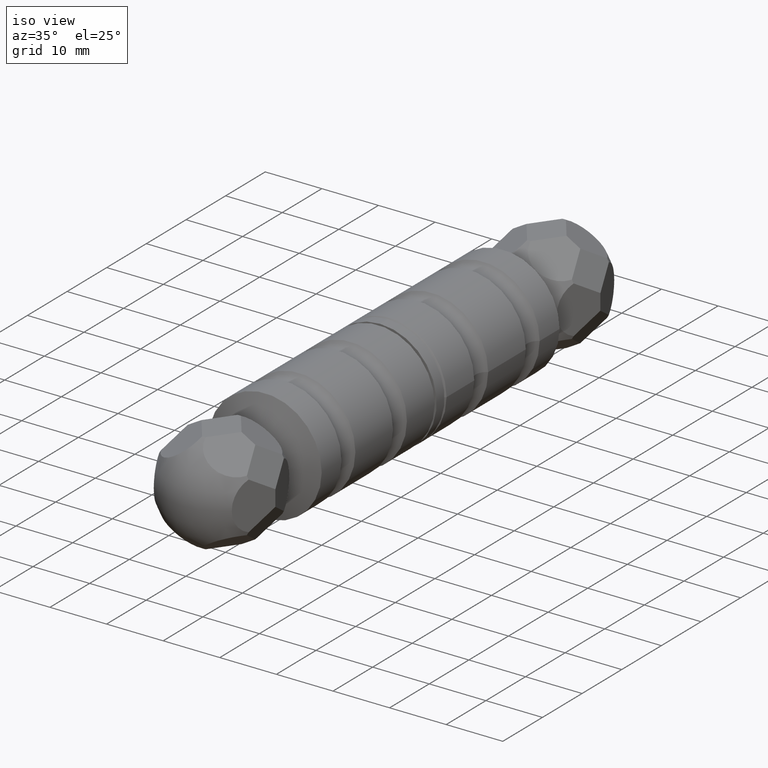
[diagram: clean part render]
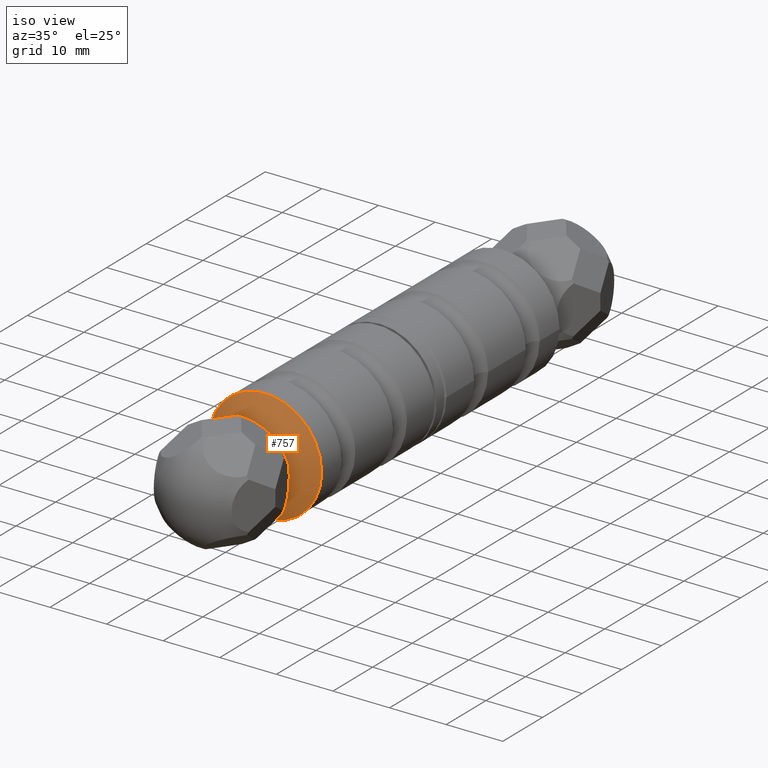
[diagram: same view with one face highlighted and labeled with its STEP entity id]
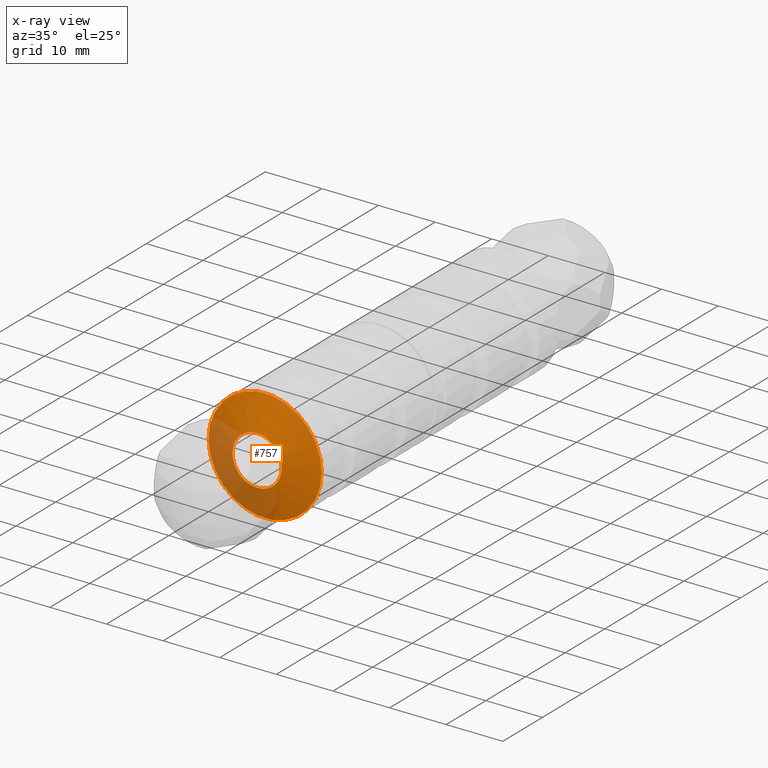
[diagram: x-ray of the same camera — body ghosted, the highlighted face saturated]
A machine part, iso view. The second image highlights one B-rep face of the part: STEP entity #757.
The next image is the same camera in x-ray: the body ghosted, the highlighted face saturated — about 30% of this face is hidden behind the body in this view.
In plain terms, the highlighted conical surface has half-angle 70.479 deg.
Its self-contained STEP definition (entity closure, byte-faithful):
#118 = AXIS2_PLACEMENT_3D ( 'NONE', #4697, #11677, #5724 ) ;
#757 = ADVANCED_FACE ( 'NONE', ( #9896, #1534 ), #4012, .T. ) ;
#1126 = CARTESIAN_POINT ( 'NONE',  ( 2.979195525095349608E-17, 28.99999999999999645, 0.000000000000000000 ) ) ;
#1534 = FACE_OUTER_BOUND ( 'NONE', #8717, .T. ) ;
#1857 = CARTESIAN_POINT ( 'NONE',  ( 0.000000000000000000, 31.00000000000000000, -4.358898943540679305 ) ) ;
#1991 = DIRECTION ( 'NONE',  ( 1.000000000000000000, 0.000000000000000000, 0.000000000000000000 ) ) ;
#2133 = DIRECTION ( 'NONE',  ( -1.027308801756978216E-18, -1.000000000000000000, 0.000000000000000000 ) ) ;
#2158 = EDGE_CURVE ( 'NONE', #4662, #4662, #6305, .T. ) ;
#2181 = CIRCLE ( 'NONE', #118, 4.358898943540679305 ) ;
#2308 = VERTEX_POINT ( 'NONE', #1857 ) ;
#2526 = ORIENTED_EDGE ( 'NONE', *, *, #11376, .T. ) ;
#2864 = AXIS2_PLACEMENT_3D ( 'NONE', #5934, #12809, #1991 ) ;
#2925 = ORIENTED_EDGE ( 'NONE', *, *, #2158, .F. ) ;
#3529 = CARTESIAN_POINT ( 'NONE',  ( 10.00000000000000355, 28.99999999999999645, 0.000000000000000000 ) ) ;
#4012 = CONICAL_SURFACE ( 'NONE', #2864, 10.00000000000000355, 1.230082068406572304 ) ;
#4204 = EDGE_LOOP ( 'NONE', ( #2526 ) ) ;
#4662 = VERTEX_POINT ( 'NONE', #3529 ) ;
#4697 = CARTESIAN_POINT ( 'NONE',  ( 0.000000000000000000, 31.00000000000000000, 6.842277657836020854E-46 ) ) ;
#5724 = DIRECTION ( 'NONE',  ( 0.000000000000000000, 0.000000000000000000, -1.000000000000000000 ) ) ;
#5934 = CARTESIAN_POINT ( 'NONE',  ( 2.979195525095349608E-17, 28.99999999999999645, 0.000000000000000000 ) ) ;
#6305 = CIRCLE ( 'NONE', #6743, 10.00000000000000355 ) ;
#6743 = AXIS2_PLACEMENT_3D ( 'NONE', #1126, #2133, #11117 ) ;
#8717 = EDGE_LOOP ( 'NONE', ( #2925 ) ) ;
#9896 = FACE_BOUND ( 'NONE', #4204, .T. ) ;
#11117 = DIRECTION ( 'NONE',  ( 1.000000000000000000, 0.000000000000000000, 0.000000000000000000 ) ) ;
#11376 = EDGE_CURVE ( 'NONE', #2308, #2308, #2181, .T. ) ;
#11677 = DIRECTION ( 'NONE',  ( 1.109335647967047851E-31, -1.000000000000000000, 0.000000000000000000 ) ) ;
#12809 = DIRECTION ( 'NONE',  ( -1.027308801756978216E-18, -1.000000000000000000, 0.000000000000000000 ) ) ;